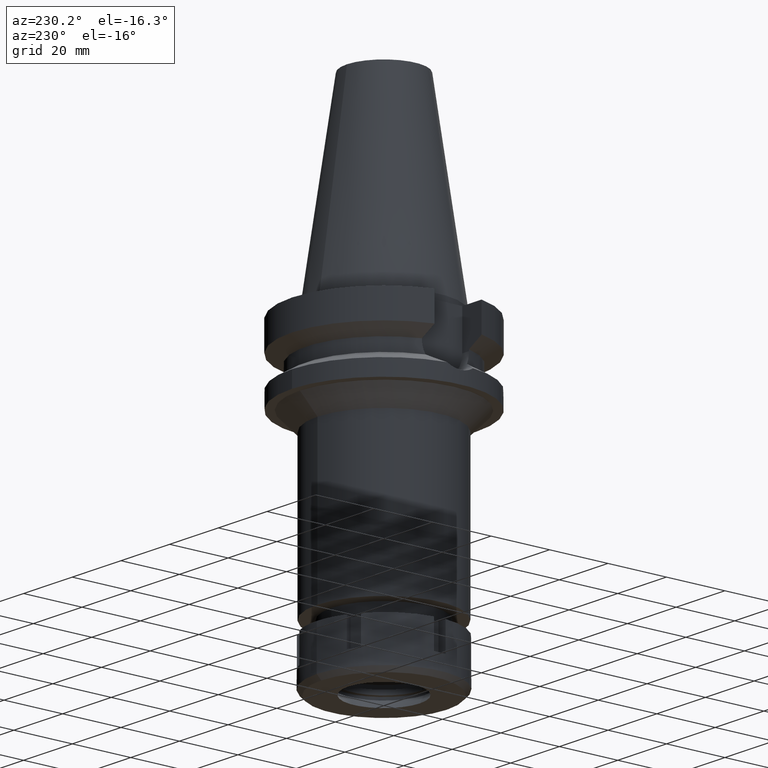
[diagram: clean part render]
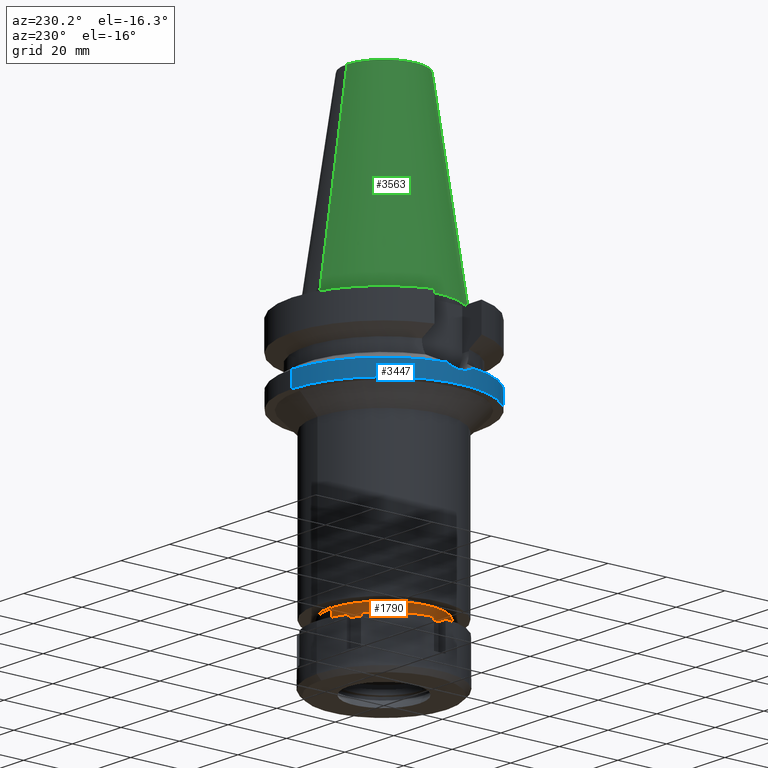
[diagram: same view with three faces highlighted in distinct colors, each labeled with its STEP entity id]
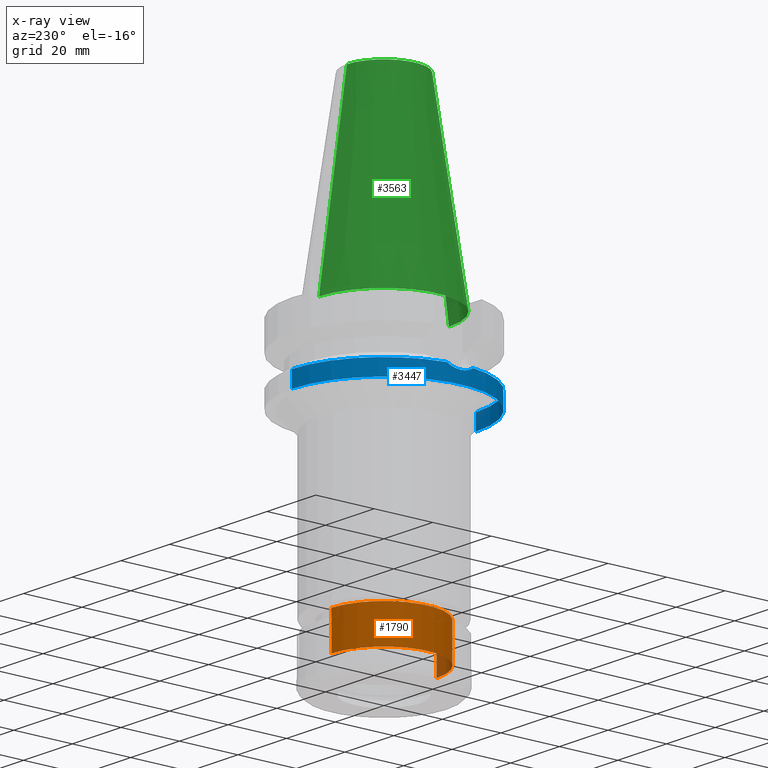
[diagram: x-ray of the same camera — body ghosted, the three highlighted faces saturated]
A machine part, auxiliary view with three faces highlighted in distinct colors.
The next image is the same camera in x-ray (body ghosted, the three faces saturated) — at least one of them is partly hidden behind the body in this view.
Their STEP definitions:

[orange] entity #1790 — the highlighted cylindrical surface (partial cylindrical patch) has radius 18 mm, axis along (0, 0, -1).
#322 = CARTESIAN_POINT ( 'NONE',  ( 0.0000000000000000000, -18.00000000000000000, -97.00000000000000000 ) ) ;
#327 = VERTEX_POINT ( 'NONE', #1770 ) ;
#441 = DIRECTION ( 'NONE',  ( 0.0000000000000000000, -1.000000000000000000, 0.0000000000000000000 ) ) ;
#442 = VERTEX_POINT ( 'NONE', #322 ) ;
#462 = CARTESIAN_POINT ( 'NONE',  ( 0.0000000000000000000, 18.00000000000000000, -97.00000000000000000 ) ) ;
#490 = ORIENTED_EDGE ( 'NONE', *, *, #1401, .T. ) ;
#725 = CIRCLE ( 'NONE', #1072, 18.00000000000000000 ) ;
#874 = LINE ( 'NONE', #2601, #1866 ) ;
#953 = DIRECTION ( 'NONE',  ( 0.0000000000000000000, 0.0000000000000000000, -1.000000000000000000 ) ) ;
#1034 = CARTESIAN_POINT ( 'NONE',  ( 0.0000000000000000000, 2.125007125879999817E-14, -84.50000000000000000 ) ) ;
#1052 = VERTEX_POINT ( 'NONE', #2119 ) ;
#1072 = AXIS2_PLACEMENT_3D ( 'NONE', #3632, #3085, #3603 ) ;
#1188 = AXIS2_PLACEMENT_3D ( 'NONE', #1034, #2947, #441 ) ;
#1235 = DIRECTION ( 'NONE',  ( 0.0000000000000000000, 0.0000000000000000000, -1.000000000000000000 ) ) ;
#1248 = AXIS2_PLACEMENT_3D ( 'NONE', #3467, #1235, #1717 ) ;
#1401 = EDGE_CURVE ( 'NONE', #327, #3610, #874, .T. ) ;
#1717 = DIRECTION ( 'NONE',  ( 0.0000000000000000000, -1.000000000000000000, 0.0000000000000000000 ) ) ;
#1770 = CARTESIAN_POINT ( 'NONE',  ( 0.0000000000000000000, 18.00000000000000000, -84.50000000000000000 ) ) ;
#1790 = ADVANCED_FACE ( 'NONE', ( #2898 ), #2851, .T. ) ;
#1811 = ORIENTED_EDGE ( 'NONE', *, *, #3311, .T. ) ;
#1816 = EDGE_CURVE ( 'NONE', #1052, #442, #2569, .T. ) ;
#1866 = VECTOR ( 'NONE', #3368, 1000.000000000000000 ) ;
#1889 = ORIENTED_EDGE ( 'NONE', *, *, #2028, .T. ) ;
#2028 = EDGE_CURVE ( 'NONE', #1052, #327, #3529, .T. ) ;
#2119 = CARTESIAN_POINT ( 'NONE',  ( 0.0000000000000000000, -18.00000000000000000, -84.50000000000000000 ) ) ;
#2243 = EDGE_LOOP ( 'NONE', ( #1811, #2996, #1889, #490 ) ) ;
#2569 = LINE ( 'NONE', #3179, #3473 ) ;
#2601 = CARTESIAN_POINT ( 'NONE',  ( 0.0000000000000000000, 18.00000000000000000, -84.50000000000000000 ) ) ;
#2851 = CYLINDRICAL_SURFACE ( 'NONE', #1248, 18.00000000000000000 ) ;
#2898 = FACE_OUTER_BOUND ( 'NONE', #2243, .T. ) ;
#2947 = DIRECTION ( 'NONE',  ( 0.0000000000000000000, 0.0000000000000000000, -1.000000000000000000 ) ) ;
#2996 = ORIENTED_EDGE ( 'NONE', *, *, #1816, .F. ) ;
#3085 = DIRECTION ( 'NONE',  ( 0.0000000000000000000, 0.0000000000000000000, 1.000000000000000000 ) ) ;
#3179 = CARTESIAN_POINT ( 'NONE',  ( 0.0000000000000000000, -18.00000000000000000, -84.50000000000000000 ) ) ;
#3311 = EDGE_CURVE ( 'NONE', #3610, #442, #725, .T. ) ;
#3368 = DIRECTION ( 'NONE',  ( 0.0000000000000000000, 0.0000000000000000000, -1.000000000000000000 ) ) ;
#3467 = CARTESIAN_POINT ( 'NONE',  ( 0.0000000000000000000, 2.125007125879999817E-14, 73.51999999999999602 ) ) ;
#3473 = VECTOR ( 'NONE', #953, 1000.000000000000000 ) ;
#3529 = CIRCLE ( 'NONE', #1188, 18.00000000000000000 ) ;
#3603 = DIRECTION ( 'NONE',  ( 0.0000000000000000000, 1.000000000000000000, 0.0000000000000000000 ) ) ;
#3610 = VERTEX_POINT ( 'NONE', #462 ) ;
#3632 = CARTESIAN_POINT ( 'NONE',  ( 0.0000000000000000000, 2.125007125879999817E-14, -97.00000000000000000 ) ) ;

[blue] entity #3447 — the highlighted cylindrical surface (partial cylindrical patch) has radius 31.5 mm, axis along (0, 0, -1).
#46 = DIRECTION ( 'NONE',  ( 0.0000000000000000000, 1.099151708819000049E-13, -1.000000000000000000 ) ) ;
#75 = CARTESIAN_POINT ( 'NONE',  ( 0.0000000000000000000, 31.50000000000000000, -27.00000000000000000 ) ) ;
#108 = EDGE_CURVE ( 'NONE', #538, #1817, #3138, .T. ) ;
#138 = CARTESIAN_POINT ( 'NONE',  ( -31.41215830074744986, 2.351096289891153823, -22.64905788739255854 ) ) ;
#190 = VERTEX_POINT ( 'NONE', #3258 ) ;
#226 = AXIS2_PLACEMENT_3D ( 'NONE', #633, #861, #3145 ) ;
#228 = CIRCLE ( 'NONE', #2448, 31.50000000000001421 ) ;
#230 = CARTESIAN_POINT ( 'NONE',  ( -31.17899877608999759, -4.485536235554000051, -21.63449434733000132 ) ) ;
#342 = CARTESIAN_POINT ( 'NONE',  ( 0.0000000000000000000, 31.50000000000000000, -21.63449434733000132 ) ) ;
#376 = AXIS2_PLACEMENT_3D ( 'NONE', #3417, #619, #2858 ) ;
#447 = CARTESIAN_POINT ( 'NONE',  ( -31.17899877608999759, -4.485536235554000051, -21.63449434733000132 ) ) ;
#465 = CARTESIAN_POINT ( 'NONE',  ( -31.27846961443055918, 3.743983546182670263, -22.08754853576750676 ) ) ;
#479 = B_SPLINE_CURVE_WITH_KNOTS ( 'NONE', 3,
 ( #2977, #1815, #465, #2071, #674, #2939, #2097, #1548, #2661, #2411, #138, #1281, #2374, #3239, #1578, #2690, #1316, #2173, #1617, #3071, #1673, #522, #1898, #3604, #2150, #230 ),
 .UNSPECIFIED., .F., .F.,
 ( 4, 2, 2, 1, 1, 2, 2, 2, 2, 2, 1, 1, 2, 2, 4 ),
 ( 0.0000000000000000000, 0.1250000000000029421, 0.1875000000000042466, 0.2187500000000047184, 0.2343750000000052736, 0.2421875000000053568, 0.2500000000000054401, 0.5000000000000052180, 0.6250000000000049960, 0.6875000000000049960, 0.7187500000000047740, 0.7343750000000046629, 0.7421875000000043299, 0.7500000000000041078, 1.000000000000000000 ),
 .UNSPECIFIED. ) ;
#522 = CARTESIAN_POINT ( 'NONE',  ( -31.41604485789486390, -2.298564670185179626, -22.66490387661266936 ) ) ;
#538 = VERTEX_POINT ( 'NONE', #1838 ) ;
#549 = ORIENTED_EDGE ( 'NONE', *, *, #1277, .T. ) ;
#619 = DIRECTION ( 'NONE',  ( 0.0000000000000000000, 0.0000000000000000000, -1.000000000000000000 ) ) ;
#620 = DIRECTION ( 'NONE',  ( 0.0000000000000000000, 0.0000000000000000000, -1.000000000000000000 ) ) ;
#633 = CARTESIAN_POINT ( 'NONE',  ( 0.0000000000000000000, 2.125007125879999817E-14, -27.00000000000000000 ) ) ;
#674 = CARTESIAN_POINT ( 'NONE',  ( -31.35500365821097191, 3.021264144826806497, -22.41390211744569783 ) ) ;
#861 = DIRECTION ( 'NONE',  ( 0.0000000000000000000, 0.0000000000000000000, 1.000000000000000000 ) ) ;
#961 = VECTOR ( 'NONE', #2555, 1000.000000000000000 ) ;
#1091 = CARTESIAN_POINT ( 'NONE',  ( 0.0000000000000000000, -31.50000000000000000, -27.00000000000000000 ) ) ;
#1095 = EDGE_CURVE ( 'NONE', #2751, #3527, #479, .T. ) ;
#1144 = EDGE_LOOP ( 'NONE', ( #3639, #2263, #549, #2523, #3649, #1731 ) ) ;
#1240 = LINE ( 'NONE', #3438, #961 ) ;
#1245 = DIRECTION ( 'NONE',  ( 0.0000000000000000000, 0.0000000000000000000, -1.000000000000000000 ) ) ;
#1277 = EDGE_CURVE ( 'NONE', #1817, #2200, #2934, .T. ) ;
#1281 = CARTESIAN_POINT ( 'NONE',  ( -31.47164681449471502, 1.548077469598718947, -22.89150997832093637 ) ) ;
#1316 = CARTESIAN_POINT ( 'NONE',  ( -31.46146862952803502, -1.567358629210796606, -22.84847756273253339 ) ) ;
#1421 = CIRCLE ( 'NONE', #2224, 31.50000000000000000 ) ;
#1422 = CARTESIAN_POINT ( 'NONE',  ( -31.17899877608999759, 4.485536235554000051, -21.63449434733000132 ) ) ;
#1429 = EDGE_CURVE ( 'NONE', #2751, #538, #228, .T. ) ;
#1476 = DIRECTION ( 'NONE',  ( -0.9898094849552905306, 0.1423979757318985240, 0.0000000000000000000 ) ) ;
#1548 = CARTESIAN_POINT ( 'NONE',  ( -31.40255557127893837, 2.476306052357307941, -22.60989025223578608 ) ) ;
#1578 = CARTESIAN_POINT ( 'NONE',  ( -31.49245606944948150, -0.7860991982164250436, -22.97124303091352360 ) ) ;
#1617 = CARTESIAN_POINT ( 'NONE',  ( -31.43626029286638612, -2.006672135019202052, -22.74702249194357861 ) ) ;
#1673 = CARTESIAN_POINT ( 'NONE',  ( -31.41955969787373704, -2.249977568502671499, -22.67921356346372974 ) ) ;
#1719 = VECTOR ( 'NONE', #46, 1000.000000000000000 ) ;
#1731 = ORIENTED_EDGE ( 'NONE', *, *, #1095, .F. ) ;
#1741 = CYLINDRICAL_SURFACE ( 'NONE', #376, 31.50000000000000000 ) ;
#1815 = CARTESIAN_POINT ( 'NONE',  ( -31.23226293288492172, 4.115296649411750884, -21.88293843198445643 ) ) ;
#1817 = VERTEX_POINT ( 'NONE', #75 ) ;
#1838 = CARTESIAN_POINT ( 'NONE',  ( 0.0000000000000000000, 31.50000000000000000, -21.63449434733000132 ) ) ;
#1898 = CARTESIAN_POINT ( 'NONE',  ( -31.41408065394637461, -2.325228041235370302, -22.65689912745287415 ) ) ;
#2035 = DIRECTION ( 'NONE',  ( 0.0000000000000000000, -1.000000000000000000, 0.0000000000000000000 ) ) ;
#2071 = CARTESIAN_POINT ( 'NONE',  ( -31.33719342387509244, 3.200318897670098917, -22.33920407938815700 ) ) ;
#2097 = CARTESIAN_POINT ( 'NONE',  ( -31.39044521733431381, 2.626578571214957414, -22.56039104643115678 ) ) ;
#2150 = CARTESIAN_POINT ( 'NONE',  ( -31.28458591552719881, -3.751599172481635769, -22.12699252594910604 ) ) ;
#2173 = CARTESIAN_POINT ( 'NONE',  ( -31.44511396460612218, -1.860301245820953353, -22.78273863314643322 ) ) ;
#2200 = VERTEX_POINT ( 'NONE', #1091 ) ;
#2224 = AXIS2_PLACEMENT_3D ( 'NONE', #2636, #1245, #2035 ) ;
#2263 = ORIENTED_EDGE ( 'NONE', *, *, #108, .T. ) ;
#2374 = CARTESIAN_POINT ( 'NONE',  ( -31.50032380699094858, 0.7535289836030051314, -23.00127312585620842 ) ) ;
#2411 = CARTESIAN_POINT ( 'NONE',  ( -31.41073716363075619, 2.369955556981345524, -22.64326362460559494 ) ) ;
#2448 = AXIS2_PLACEMENT_3D ( 'NONE', #2538, #620, #1476 ) ;
#2523 = ORIENTED_EDGE ( 'NONE', *, *, #3363, .F. ) ;
#2538 = CARTESIAN_POINT ( 'NONE',  ( 0.0000000000000000000, 0.0000000000000000000, -21.63449434733000132 ) ) ;
#2555 = DIRECTION ( 'NONE',  ( 0.0000000000000000000, -1.105773104655000034E-13, -1.000000000000000000 ) ) ;
#2636 = CARTESIAN_POINT ( 'NONE',  ( 0.0000000000000000000, 0.0000000000000000000, -21.63449434733000132 ) ) ;
#2661 = CARTESIAN_POINT ( 'NONE',  ( -31.40749760860526152, 2.412424580014026709, -22.63005222544030204 ) ) ;
#2690 = CARTESIAN_POINT ( 'NONE',  ( -31.47056816806593460, -1.371798205039238550, -22.88470967409992340 ) ) ;
#2751 = VERTEX_POINT ( 'NONE', #1422 ) ;
#2858 = DIRECTION ( 'NONE',  ( 0.0000000000000000000, -1.000000000000000000, 0.0000000000000000000 ) ) ;
#2907 = EDGE_CURVE ( 'NONE', #190, #3527, #1421, .T. ) ;
#2934 = CIRCLE ( 'NONE', #226, 31.50000000000000000 ) ;
#2939 = CARTESIAN_POINT ( 'NONE',  ( -31.37907245649627797, 2.757363126088964833, -22.51361630133309077 ) ) ;
#2977 = CARTESIAN_POINT ( 'NONE',  ( -31.17899877608999759, 4.485536235554000051, -21.63449434733000132 ) ) ;
#3071 = CARTESIAN_POINT ( 'NONE',  ( -31.42474741543222549, -2.177058571085332073, -22.70031563427076549 ) ) ;
#3138 = LINE ( 'NONE', #342, #1719 ) ;
#3145 = DIRECTION ( 'NONE',  ( 0.0000000000000000000, 1.000000000000000000, 0.0000000000000000000 ) ) ;
#3239 = CARTESIAN_POINT ( 'NONE',  ( -31.49983371806498056, -0.3969849275398034671, -22.99934650678999049 ) ) ;
#3258 = CARTESIAN_POINT ( 'NONE',  ( 0.0000000000000000000, -31.50000000000000000, -21.63449434733000132 ) ) ;
#3363 = EDGE_CURVE ( 'NONE', #190, #2200, #1240, .T. ) ;
#3417 = CARTESIAN_POINT ( 'NONE',  ( 0.0000000000000000000, 2.125007125879999817E-14, 73.51999999999999602 ) ) ;
#3438 = CARTESIAN_POINT ( 'NONE',  ( 0.0000000000000000000, -31.50000000000000000, -21.63449434733000132 ) ) ;
#3447 = ADVANCED_FACE ( 'NONE', ( #3494 ), #1741, .T. ) ;
#3494 = FACE_OUTER_BOUND ( 'NONE', #1144, .T. ) ;
#3527 = VERTEX_POINT ( 'NONE', #447 ) ;
#3604 = CARTESIAN_POINT ( 'NONE',  ( -31.36242476482150465, -3.016548684978616723, -22.44626900665361546 ) ) ;
#3639 = ORIENTED_EDGE ( 'NONE', *, *, #1429, .T. ) ;
#3649 = ORIENTED_EDGE ( 'NONE', *, *, #2907, .T. ) ;

[green] entity #3563 — the highlighted conical surface has half-angle 8.297 deg.
#42 = DIRECTION ( 'NONE',  ( 0.0000000000000000000, -0.1443043893539925626, -0.9895333461855498891 ) ) ;
#349 = EDGE_CURVE ( 'NONE', #2298, #1017, #900, .T. ) ;
#361 = CARTESIAN_POINT ( 'NONE',  ( 0.0000000000000000000, -12.68766899429999917, 65.40000000000000568 ) ) ;
#493 = CONICAL_SURFACE ( 'NONE', #1314, 17.45633449714999941, 0.1448099680379422438 ) ;
#506 = CARTESIAN_POINT ( 'NONE',  ( 0.0000000000000000000, 1.625106302469000024E-14, 65.40000000000000568 ) ) ;
#900 = LINE ( 'NONE', #2910, #3630 ) ;
#906 = ORIENTED_EDGE ( 'NONE', *, *, #1951, .F. ) ;
#928 = EDGE_LOOP ( 'NONE', ( #906, #3151, #2250, #1966 ) ) ;
#1017 = VERTEX_POINT ( 'NONE', #1798 ) ;
#1060 = AXIS2_PLACEMENT_3D ( 'NONE', #2982, #2417, #1272 ) ;
#1139 = EDGE_CURVE ( 'NONE', #3209, #2979, #2133, .T. ) ;
#1272 = DIRECTION ( 'NONE',  ( 0.0000000000000000000, -1.000000000000000000, 0.0000000000000000000 ) ) ;
#1280 = DIRECTION ( 'NONE',  ( 0.0000000000000000000, 0.0000000000000000000, -1.000000000000000000 ) ) ;
#1314 = AXIS2_PLACEMENT_3D ( 'NONE', #2409, #3548, #2115 ) ;
#1539 = AXIS2_PLACEMENT_3D ( 'NONE', #506, #1280, #2132 ) ;
#1798 = CARTESIAN_POINT ( 'NONE',  ( 0.0000000000000000000, -22.22500000000000142, 2.842170943039999687E-14 ) ) ;
#1846 = FACE_OUTER_BOUND ( 'NONE', #928, .T. ) ;
#1847 = CARTESIAN_POINT ( 'NONE',  ( 0.0000000000000000000, 22.22500000000000142, 9.947598300640998705E-14 ) ) ;
#1951 = EDGE_CURVE ( 'NONE', #1017, #2979, #2691, .T. ) ;
#1966 = ORIENTED_EDGE ( 'NONE', *, *, #1139, .T. ) ;
#2115 = DIRECTION ( 'NONE',  ( 0.0000000000000000000, -1.000000000000000000, 0.0000000000000000000 ) ) ;
#2132 = DIRECTION ( 'NONE',  ( 0.0000000000000000000, -1.000000000000000000, 0.0000000000000000000 ) ) ;
#2133 = LINE ( 'NONE', #3270, #2506 ) ;
#2166 = CIRCLE ( 'NONE', #1539, 12.68766899429999917 ) ;
#2250 = ORIENTED_EDGE ( 'NONE', *, *, #2990, .T. ) ;
#2298 = VERTEX_POINT ( 'NONE', #361 ) ;
#2409 = CARTESIAN_POINT ( 'NONE',  ( 0.0000000000000000000, 1.625106302469000024E-14, 32.70000000000000284 ) ) ;
#2417 = DIRECTION ( 'NONE',  ( 0.0000000000000000000, 0.0000000000000000000, -1.000000000000000000 ) ) ;
#2482 = CARTESIAN_POINT ( 'NONE',  ( 0.0000000000000000000, 12.68766899429999917, 65.40000000000000568 ) ) ;
#2506 = VECTOR ( 'NONE', #2765, 1000.000000000000114 ) ;
#2691 = CIRCLE ( 'NONE', #1060, 22.22500000000000142 ) ;
#2765 = DIRECTION ( 'NONE',  ( 0.0000000000000000000, 0.1443043893539925626, -0.9895333461855498891 ) ) ;
#2910 = CARTESIAN_POINT ( 'NONE',  ( 0.0000000000000000000, -12.68766899429999917, 65.40000000000000568 ) ) ;
#2979 = VERTEX_POINT ( 'NONE', #1847 ) ;
#2982 = CARTESIAN_POINT ( 'NONE',  ( 0.0000000000000000000, 1.625106302469000024E-14, 2.842170943039999687E-14 ) ) ;
#2990 = EDGE_CURVE ( 'NONE', #2298, #3209, #2166, .T. ) ;
#3151 = ORIENTED_EDGE ( 'NONE', *, *, #349, .F. ) ;
#3209 = VERTEX_POINT ( 'NONE', #2482 ) ;
#3270 = CARTESIAN_POINT ( 'NONE',  ( 0.0000000000000000000, 12.68766899429999917, 65.40000000000000568 ) ) ;
#3548 = DIRECTION ( 'NONE',  ( 0.0000000000000000000, 0.0000000000000000000, -1.000000000000000000 ) ) ;
#3563 = ADVANCED_FACE ( 'NONE', ( #1846 ), #493, .T. ) ;
#3630 = VECTOR ( 'NONE', #42, 1000.000000000000114 ) ;